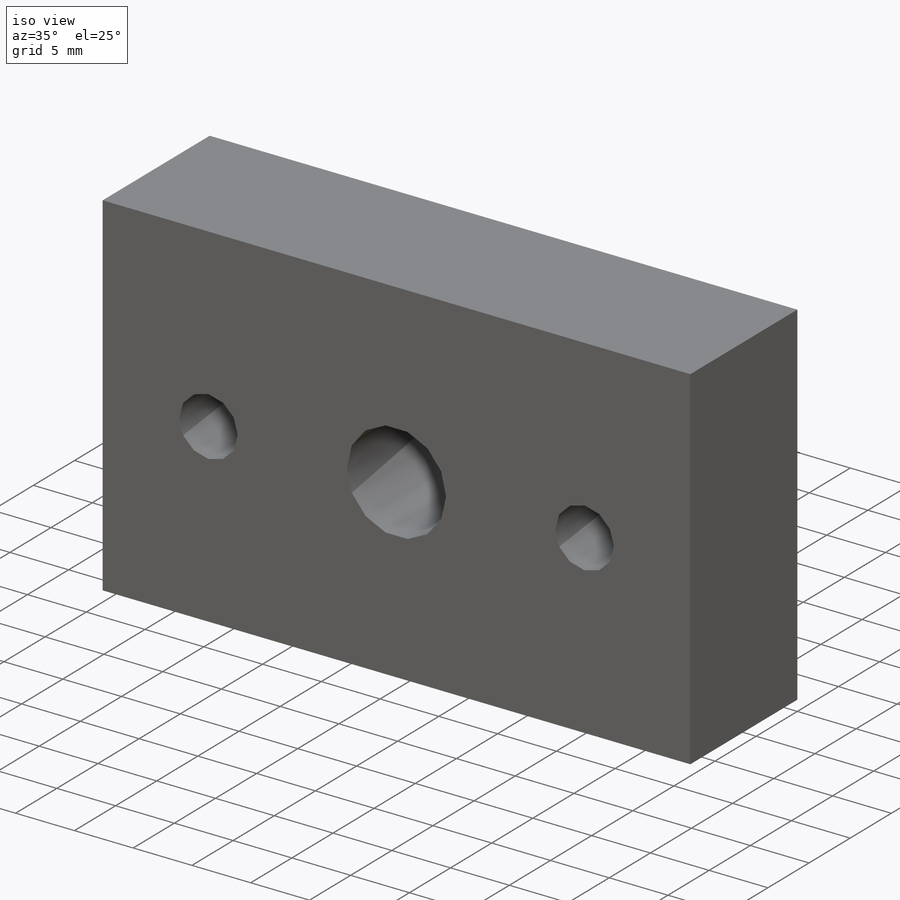
[diagram: iso view]
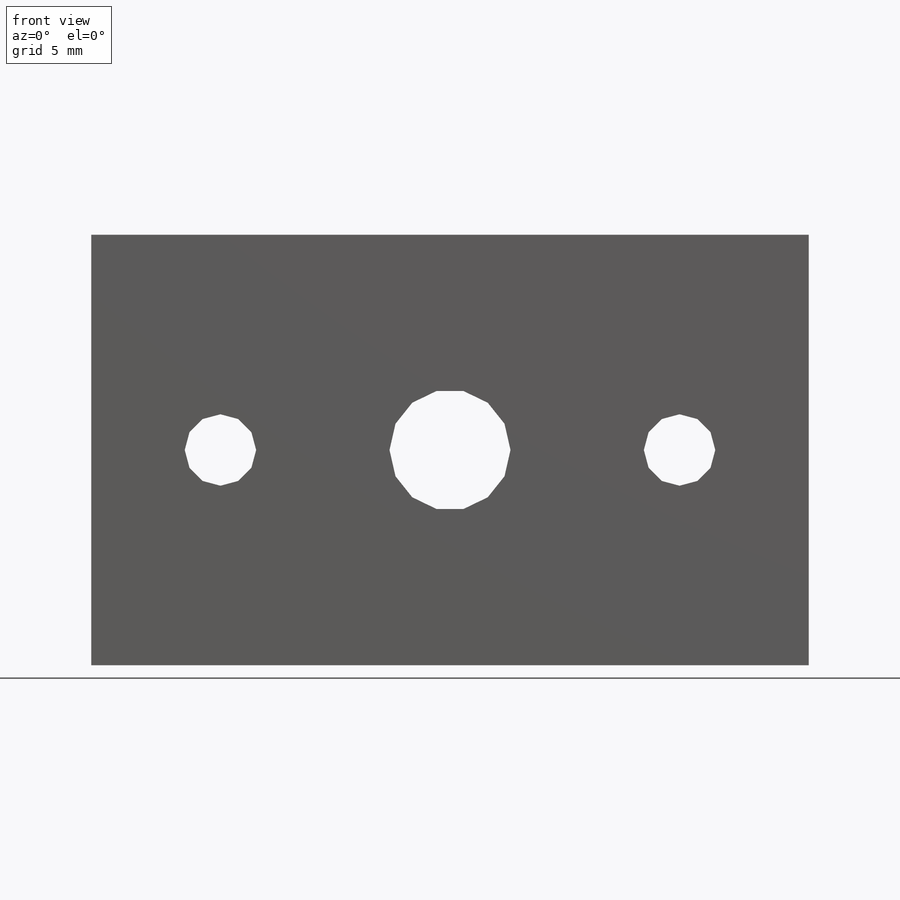
[diagram: front view]
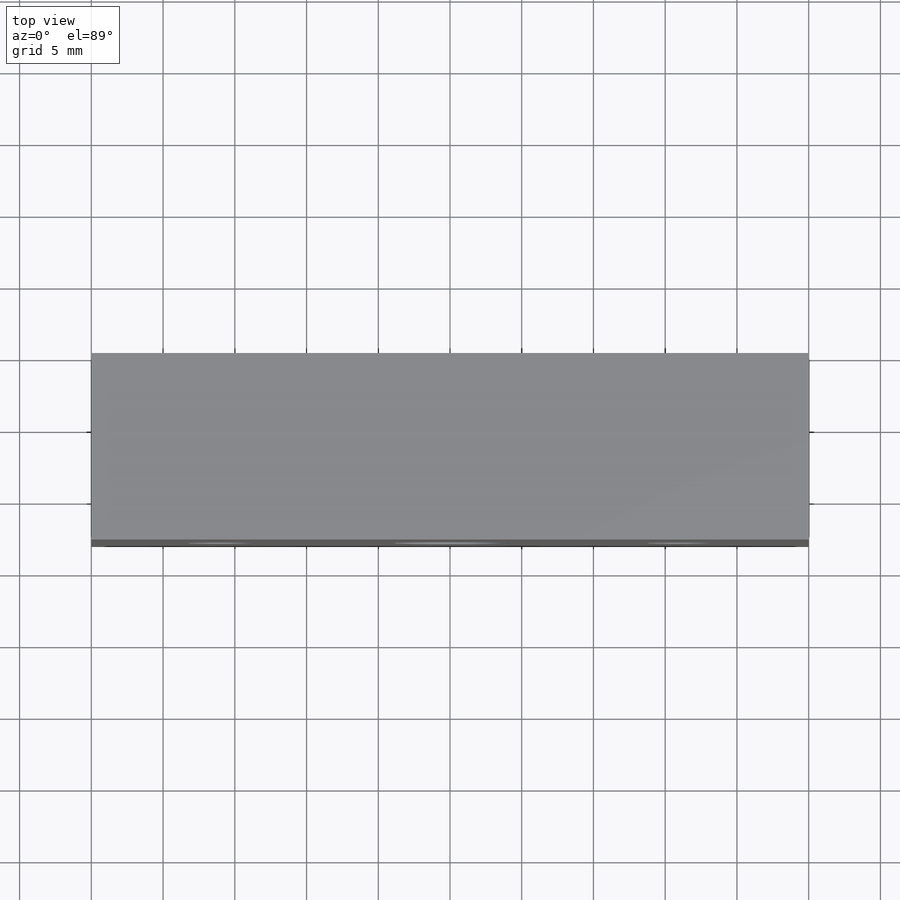
[diagram: top view]
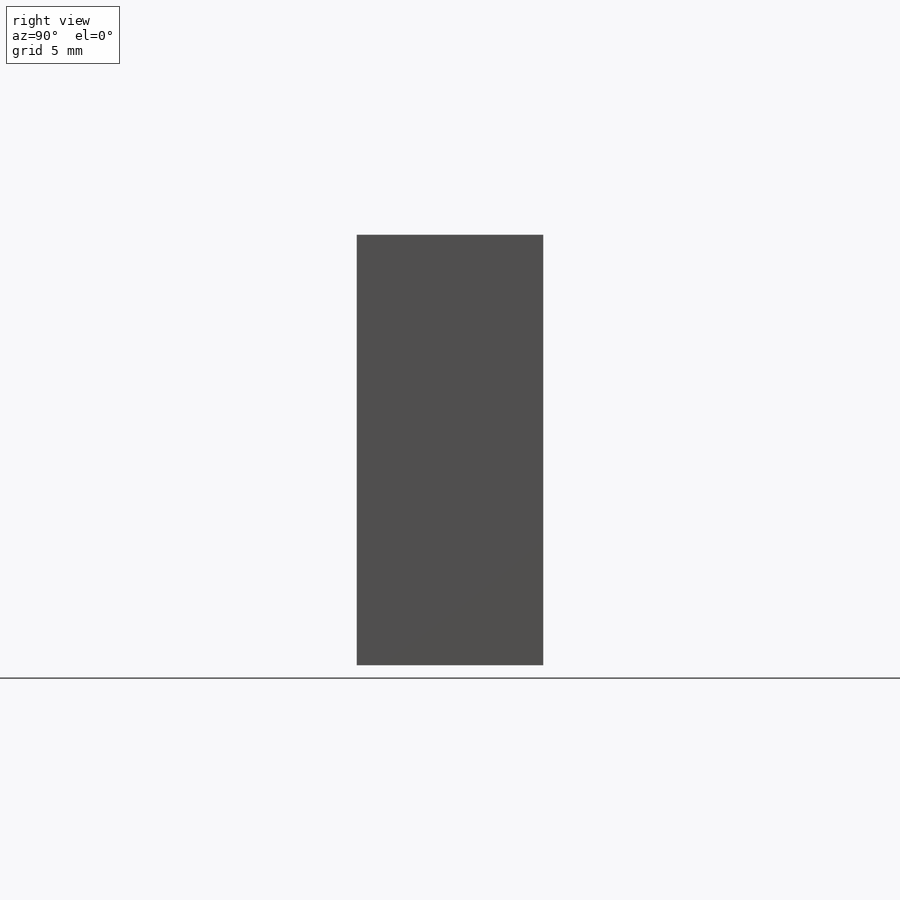
[diagram: right view]
SOLIDWORKS PART (.sldprt)
format: sldprt  version: not decoded by parser v0  size: 170,496 bytes
history: native  units: mm
features: sketch x5, hole x2, material x1, extrude x1 (+11 scaffold rows collapsed)
feature tree (20):
  scaffold x11  (default folders/planes/origin — collapsed)
  material  "6061-T6 (SS)"
  sketch  "Sketch1"  dims[D1=50.0mm D2=30.0mm]
  extrude  "Boss-Extrude1"  Depth=13mm
  hole  "Tap Drill for 5/16-18 Helicoil1"  Diameter=8.4328mm Depth=129.53mm
  sketch  "Sketch3"
  sketch  "Sketch2"  dims[hole-wizard template sketch: 46 standard entries collapsed; hole parameters kept: c15.Hole Dia.=8.4328mm c15.Hole Depth=129.53mm c15.D3=~14.816244mm c15.Drill Angle=118.0deg]
  hole  "#10 Clearance Hole1"  Diameter=4.9784mm Depth=129.53mm
  sketch  "Sketch5"  dims[D1=16.0mm D2=~26.521246mm]
  sketch  "Sketch4"  dims[hole-wizard template sketch: 47 standard entries collapsed; hole parameters kept: c15.Hole Depth=129.53mm c15.D3=~14.816244mm c15.Drill Angle=118.0deg]
decode coverage: 7 of 8 modeling features carry decoded parameters
note: ~ marks probable driven/reference dimensions
note: suppression state not decoded; provenance and decode notes live in map.json
